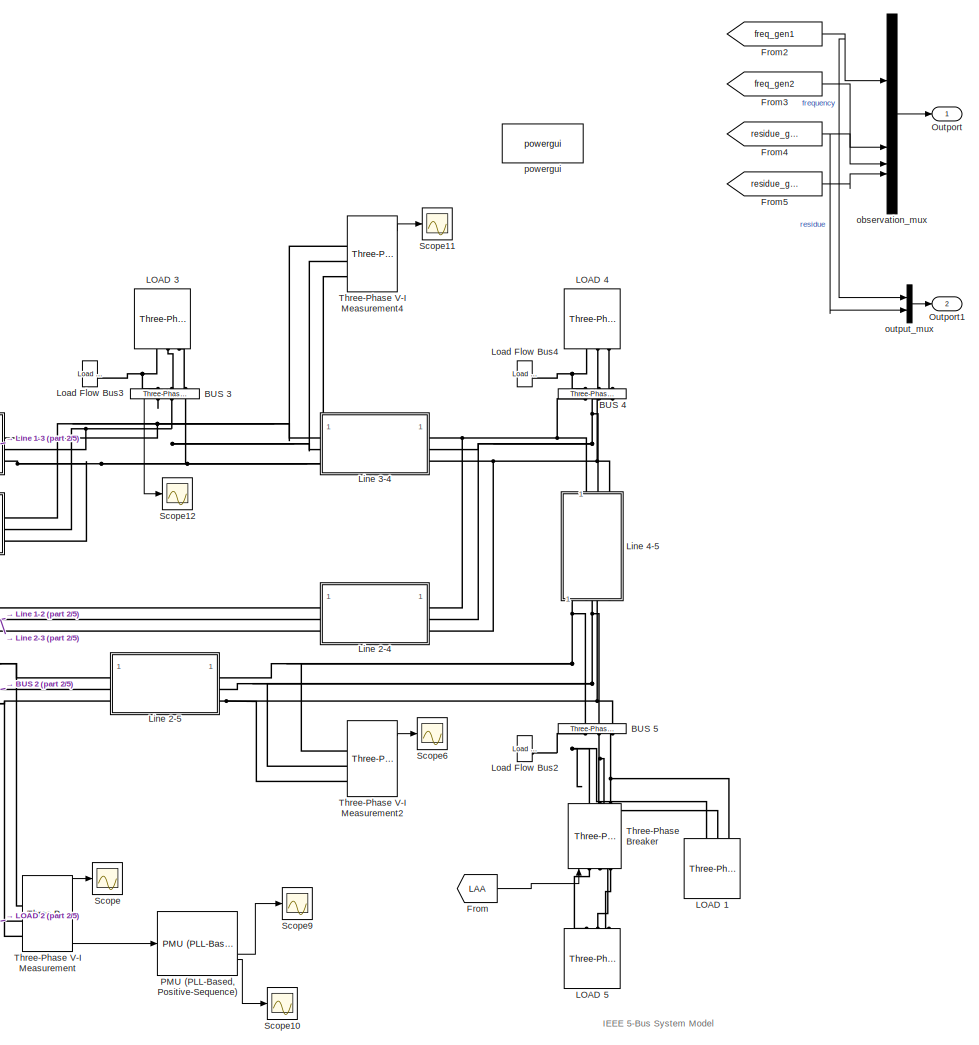
[diagram: root canvas - part 1/5, right side, full height]
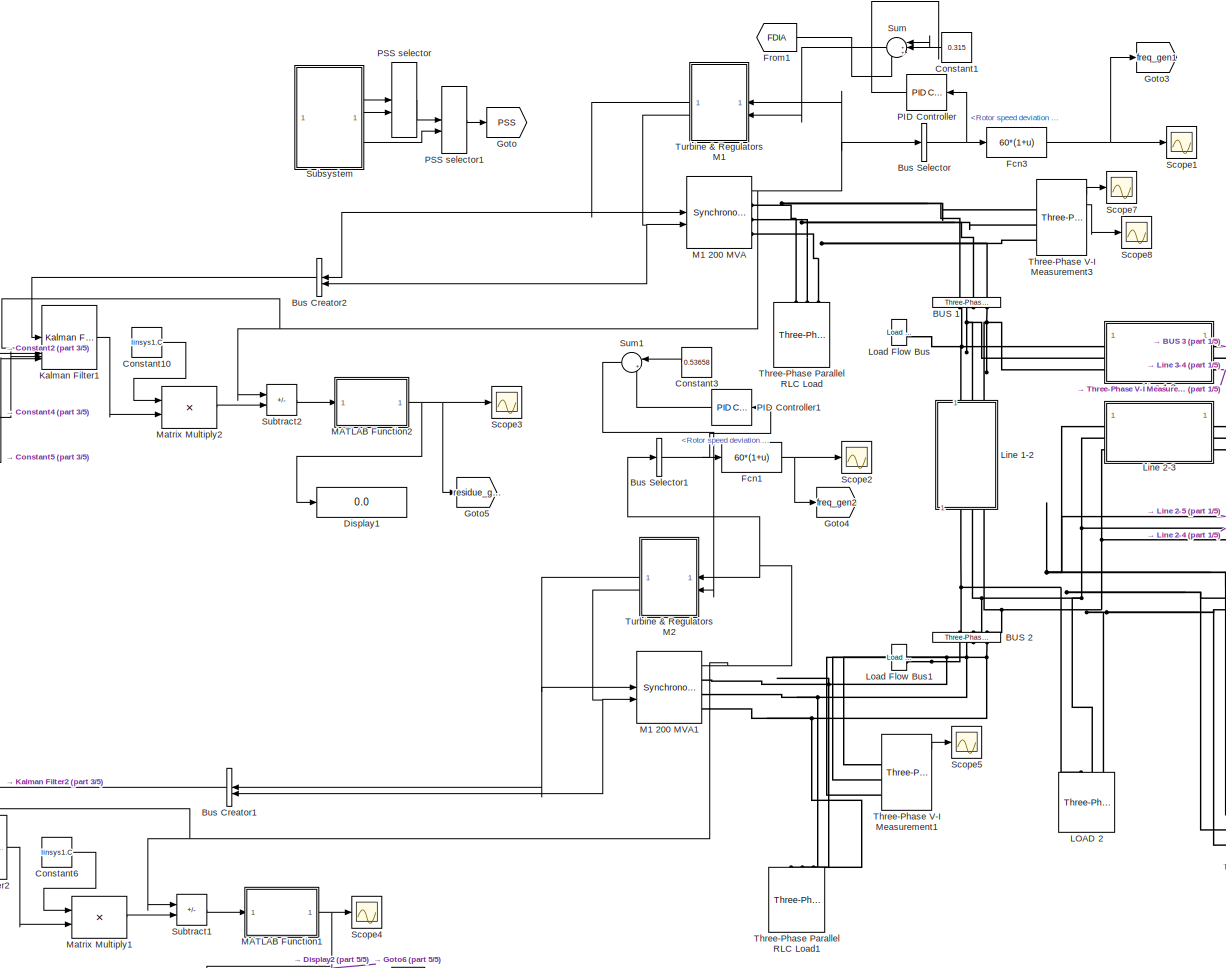
[diagram: root canvas - part 2/5, center side, full height]
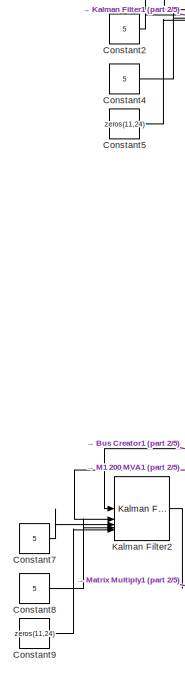
[diagram: root canvas - part 3/5, bottom left region]
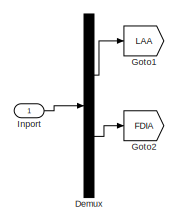
[diagram: root canvas - part 4/5, middle left region]
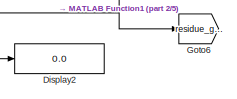
[diagram: root canvas - part 5/5, bottom left region]
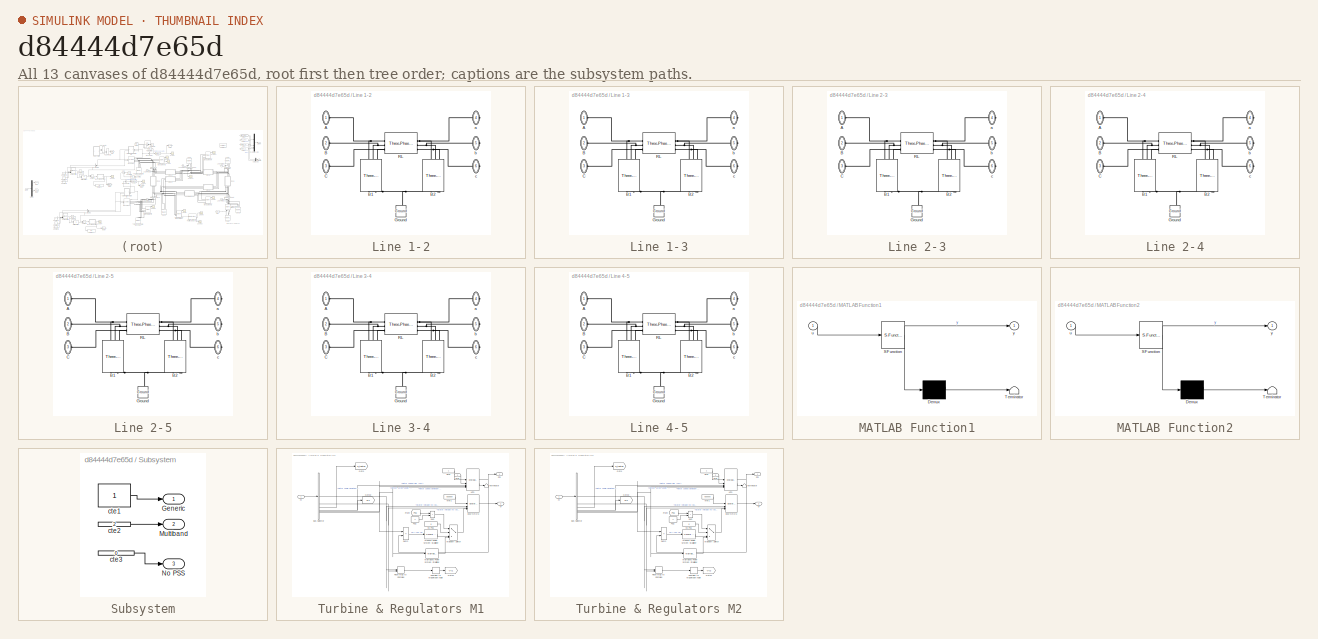
[diagram: thumbnail index - all 13 canvases of the model, root first then tree order]
MODEL mdl_d84444d7e65d
KIND model
CONFIG AbsTol = auto
CONFIG EnableMultiTasking = off
CONFIG FixedStep = auto
CONFIG MaxStep = auto
CONFIG MinStep = auto
CONFIG RelTol = 1e-3
CONFIG SampleTimeConstraint = Unconstrained
CONFIG SolverName = VariableStepAuto
CONFIG StartTime = 0.0
CONFIG StopTime = 2
BLOCK [Reference] BUS 1  REF=spsThreePhaseVIMeasurementLib/Three-Phase
V-I Measurement
  NameLocation = left
  SourceBlock = spsThreePhaseVIMeasurementLib/Three-Phase\nV-I Measurement
  SourceType = Three-Phase VI Measurement
BLOCK [Reference] BUS 2  REF=spsThreePhaseVIMeasurementLib/Three-Phase
V-I Measurement
  NameLocation = left
  SourceBlock = spsThreePhaseVIMeasurementLib/Three-Phase\nV-I Measurement
  SourceType = Three-Phase VI Measurement
BLOCK [Reference] BUS 3  REF=spsThreePhaseVIMeasurementLib/Three-Phase
V-I Measurement
  NameLocation = left
  SourceBlock = spsThreePhaseVIMeasurementLib/Three-Phase\nV-I Measurement
  SourceType = Three-Phase VI Measurement
BLOCK [Reference] BUS 4  REF=spsThreePhaseVIMeasurementLib/Three-Phase
V-I Measurement
  NameLocation = left
  SourceBlock = spsThreePhaseVIMeasurementLib/Three-Phase\nV-I Measurement
  SourceType = Three-Phase VI Measurement
BLOCK [Reference] BUS 5  REF=spsThreePhaseVIMeasurementLib/Three-Phase
V-I Measurement
  NameLocation = left
  SourceBlock = spsThreePhaseVIMeasurementLib/Three-Phase\nV-I Measurement
  SourceType = Three-Phase VI Measurement
BLOCK [BusCreator] Bus Creator1
  DisplayOption = bar
  InheritFromInputs = on
  Inputs = 2
  NameLocation = top
BLOCK [BusCreator] Bus Creator2
  DisplayOption = bar
  InheritFromInputs = on
  Inputs = 2
  NameLocation = top
BLOCK [BusSelector] Bus Selector
  OutputSignals = Mechanical.Rotor speed deviation  dw (pu)
BLOCK [BusSelector] Bus Selector1
  OutputSignals = Mechanical.Rotor speed deviation  dw (pu)
BLOCK [Constant] Constant1
  NameLocation = top
  Value = 0.315
BLOCK [Constant] Constant10
  Value = linsys1.C
BLOCK [Constant] Constant2
  Value = 5
BLOCK [Constant] Constant3
  NameLocation = top
  Value = 0.53658
BLOCK [Constant] Constant4
  Value = 5
BLOCK [Constant] Constant5
  Value = zeros(11,24)
BLOCK [Constant] Constant6
  Value = linsys1.C
BLOCK [Constant] Constant7
  Value = 5
BLOCK [Constant] Constant8
  Value = 5
BLOCK [Constant] Constant9
  Value = zeros(11,24)
BLOCK [Demux] Demux
  Outputs = 2
BLOCK [Display] Display1
  Decimation = 1
BLOCK [Display] Display2
  Decimation = 1
BLOCK [Fcn] Fcn1
  Expr = 60*(1+u)
BLOCK [Fcn] Fcn3
  Expr = 60*(1+u)
BLOCK [From] From
  GotoTag = LAA
BLOCK [From] From1
  GotoTag = FDIA
BLOCK [From] From2
  GotoTag = freq_gen1
BLOCK [From] From3
  GotoTag = freq_gen2
BLOCK [From] From4
  GotoTag = residue_gen1
BLOCK [From] From5
  GotoTag = residue_gen2
BLOCK [Goto] Goto
  GotoTag = PSS
  TagVisibility = global
BLOCK [Goto] Goto1
  GotoTag = LAA
BLOCK [Goto] Goto2
  GotoTag = FDIA
BLOCK [Goto] Goto3
  GotoTag = freq_gen1
BLOCK [Goto] Goto4
  GotoTag = freq_gen2
BLOCK [Goto] Goto5
  GotoTag = residue_gen1
BLOCK [Goto] Goto6
  GotoTag = residue_gen2
BLOCK [Inport] Inport
BLOCK [Reference] Kalman Filter1  REF=ctrlSharedLib/Kalman Filter
  SourceBlock = ctrlSharedLib/Kalman Filter
  SourceType = ctrlKalmanFilter
BLOCK [Reference] Kalman Filter2  REF=ctrlSharedLib/Kalman Filter
  SourceBlock = ctrlSharedLib/Kalman Filter
  SourceType = ctrlKalmanFilter
BLOCK [Reference] LOAD 1  REF=spsThreePhaseSeriesRLCLoadLib/Three-Phase
Series RLC Load
  AttributesFormatString = \n
  NameLocation = right
  SourceBlock = spsThreePhaseSeriesRLCLoadLib/Three-Phase\nSeries RLC Load
  SourceType = Three-Phase Series RLC Load
BLOCK [Reference] LOAD 2  REF=spsThreePhaseSeriesRLCLoadLib/Three-Phase
Series RLC Load
  AttributesFormatString = \n
  NameLocation = right
  SourceBlock = spsThreePhaseSeriesRLCLoadLib/Three-Phase\nSeries RLC Load
  SourceType = Three-Phase Series RLC Load
BLOCK [Reference] LOAD 3  REF=spsThreePhaseSeriesRLCLoadLib/Three-Phase
Series RLC Load
  AttributesFormatString = \n
  NameLocation = right
  SourceBlock = spsThreePhaseSeriesRLCLoadLib/Three-Phase\nSeries RLC Load
  SourceType = Three-Phase Series RLC Load
BLOCK [Reference] LOAD 4  REF=spsThreePhaseSeriesRLCLoadLib/Three-Phase
Series RLC Load
  AttributesFormatString = \n
  NameLocation = right
  SourceBlock = spsThreePhaseSeriesRLCLoadLib/Three-Phase\nSeries RLC Load
  SourceType = Three-Phase Series RLC Load
BLOCK [Reference] LOAD 5  REF=spsThreePhaseSeriesRLCLoadLib/Three-Phase
Series RLC Load
  AttributesFormatString = \n
  NameLocation = right
  SourceBlock = spsThreePhaseSeriesRLCLoadLib/Three-Phase\nSeries RLC Load
  SourceType = Three-Phase Series RLC Load
BLOCK [SubSystem] Line 1-2
  NameLocation = right
BLOCK [PMIOPort] Line 1-2/A
  NameLocation = top
  Side = Left
BLOCK [PMIOPort] Line 1-2/B
  NameLocation = top
  Port = 2
  Side = Left
BLOCK [Reference] Line 1-2/B1  REF=spsThreePhaseSeriesRLCBranchLib/Three-Phase
Series RLC Branch
  AttributesFormatString = \n
  NameLocation = left
  SourceBlock = spsThreePhaseSeriesRLCBranchLib/Three-Phase\nSeries RLC Branch
  SourceType = Three-Phase Series RLC Branch
BLOCK [Reference] Line 1-2/B2  REF=spsThreePhaseSeriesRLCBranchLib/Three-Phase
Series RLC Branch
  AttributesFormatString = \n
  NameLocation = left
  SourceBlock = spsThreePhaseSeriesRLCBranchLib/Three-Phase\nSeries RLC Branch
  SourceType = Three-Phase Series RLC Branch
BLOCK [PMIOPort] Line 1-2/C
  NameLocation = top
  Port = 3
  Side = Left
BLOCK [Reference] Line 1-2/Ground  REF=spsGroundLib/Ground
  NameLocation = right
  SourceBlock = spsGroundLib/Ground
  SourceType = Ground
BLOCK [Reference] Line 1-2/RL  REF=spsThreePhaseSeriesRLCBranchLib/Three-Phase
Series RLC Branch
  AttributesFormatString = \n
  SourceBlock = spsThreePhaseSeriesRLCBranchLib/Three-Phase\nSeries RLC Branch
  SourceType = Three-Phase Series RLC Branch
BLOCK [PMIOPort] Line 1-2/a
  NameLocation = top
  Port = 4
  Side = Right
BLOCK [PMIOPort] Line 1-2/b
  NameLocation = top
  Port = 5
  Side = Right
BLOCK [PMIOPort] Line 1-2/c
  NameLocation = top
  Port = 6
  Side = Right
BLOCK [SubSystem] Line 1-3
BLOCK [PMIOPort] Line 1-3/A
  NameLocation = top
  Side = Left
BLOCK [PMIOPort] Line 1-3/B
  NameLocation = top
  Port = 2
  Side = Left
BLOCK [Reference] Line 1-3/B1  REF=spsThreePhaseSeriesRLCBranchLib/Three-Phase
Series RLC Branch
  AttributesFormatString = \n
  NameLocation = left
  SourceBlock = spsThreePhaseSeriesRLCBranchLib/Three-Phase\nSeries RLC Branch
  SourceType = Three-Phase Series RLC Branch
BLOCK [Reference] Line 1-3/B2  REF=spsThreePhaseSeriesRLCBranchLib/Three-Phase
Series RLC Branch
  AttributesFormatString = \n
  NameLocation = left
  SourceBlock = spsThreePhaseSeriesRLCBranchLib/Three-Phase\nSeries RLC Branch
  SourceType = Three-Phase Series RLC Branch
BLOCK [PMIOPort] Line 1-3/C
  NameLocation = top
  Port = 3
  Side = Left
BLOCK [Reference] Line 1-3/Ground  REF=spsGroundLib/Ground
  NameLocation = right
  SourceBlock = spsGroundLib/Ground
  SourceType = Ground
BLOCK [Reference] Line 1-3/RL  REF=spsThreePhaseSeriesRLCBranchLib/Three-Phase
Series RLC Branch
  AttributesFormatString = \n
  SourceBlock = spsThreePhaseSeriesRLCBranchLib/Three-Phase\nSeries RLC Branch
  SourceType = Three-Phase Series RLC Branch
BLOCK [PMIOPort] Line 1-3/a
  NameLocation = top
  Port = 4
  Side = Right
BLOCK [PMIOPort] Line 1-3/b
  NameLocation = top
  Port = 5
  Side = Right
BLOCK [PMIOPort] Line 1-3/c
  NameLocation = top
  Port = 6
  Side = Right
BLOCK [SubSystem] Line 2-3
BLOCK [PMIOPort] Line 2-3/A
  NameLocation = top
  Side = Left
BLOCK [PMIOPort] Line 2-3/B
  NameLocation = top
  Port = 2
  Side = Left
BLOCK [Reference] Line 2-3/B1  REF=spsThreePhaseSeriesRLCBranchLib/Three-Phase
Series RLC Branch
  AttributesFormatString = \n
  NameLocation = left
  SourceBlock = spsThreePhaseSeriesRLCBranchLib/Three-Phase\nSeries RLC Branch
  SourceType = Three-Phase Series RLC Branch
BLOCK [Reference] Line 2-3/B2  REF=spsThreePhaseSeriesRLCBranchLib/Three-Phase
Series RLC Branch
  AttributesFormatString = \n
  NameLocation = left
  SourceBlock = spsThreePhaseSeriesRLCBranchLib/Three-Phase\nSeries RLC Branch
  SourceType = Three-Phase Series RLC Branch
BLOCK [PMIOPort] Line 2-3/C
  NameLocation = top
  Port = 3
  Side = Left
BLOCK [Reference] Line 2-3/Ground  REF=spsGroundLib/Ground
  NameLocation = right
  SourceBlock = spsGroundLib/Ground
  SourceType = Ground
BLOCK [Reference] Line 2-3/RL  REF=spsThreePhaseSeriesRLCBranchLib/Three-Phase
Series RLC Branch
  AttributesFormatString = \n
  SourceBlock = spsThreePhaseSeriesRLCBranchLib/Three-Phase\nSeries RLC Branch
  SourceType = Three-Phase Series RLC Branch
BLOCK [PMIOPort] Line 2-3/a
  NameLocation = top
  Port = 4
  Side = Right
BLOCK [PMIOPort] Line 2-3/b
  NameLocation = top
  Port = 5
  Side = Right
BLOCK [PMIOPort] Line 2-3/c
  NameLocation = top
  Port = 6
  Side = Right
BLOCK [SubSystem] Line 2-4
BLOCK [PMIOPort] Line 2-4/A
  NameLocation = top
  Side = Left
BLOCK [PMIOPort] Line 2-4/B
  NameLocation = top
  Port = 2
  Side = Left
BLOCK [Reference] Line 2-4/B1  REF=spsThreePhaseSeriesRLCBranchLib/Three-Phase
Series RLC Branch
  AttributesFormatString = \n
  NameLocation = left
  SourceBlock = spsThreePhaseSeriesRLCBranchLib/Three-Phase\nSeries RLC Branch
  SourceType = Three-Phase Series RLC Branch
BLOCK [Reference] Line 2-4/B2  REF=spsThreePhaseSeriesRLCBranchLib/Three-Phase
Series RLC Branch
  AttributesFormatString = \n
  NameLocation = left
  SourceBlock = spsThreePhaseSeriesRLCBranchLib/Three-Phase\nSeries RLC Branch
  SourceType = Three-Phase Series RLC Branch
BLOCK [PMIOPort] Line 2-4/C
  NameLocation = top
  Port = 3
  Side = Left
BLOCK [Reference] Line 2-4/Ground  REF=spsGroundLib/Ground
  NameLocation = right
  SourceBlock = spsGroundLib/Ground
  SourceType = Ground
BLOCK [Reference] Line 2-4/RL  REF=spsThreePhaseSeriesRLCBranchLib/Three-Phase
Series RLC Branch
  AttributesFormatString = \n
  SourceBlock = spsThreePhaseSeriesRLCBranchLib/Three-Phase\nSeries RLC Branch
  SourceType = Three-Phase Series RLC Branch
BLOCK [PMIOPort] Line 2-4/a
  NameLocation = top
  Port = 4
  Side = Right
BLOCK [PMIOPort] Line 2-4/b
  NameLocation = top
  Port = 5
  Side = Right
BLOCK [PMIOPort] Line 2-4/c
  NameLocation = top
  Port = 6
  Side = Right
BLOCK [SubSystem] Line 2-5
BLOCK [PMIOPort] Line 2-5/A
  NameLocation = top
  Side = Left
BLOCK [PMIOPort] Line 2-5/B
  NameLocation = top
  Port = 2
  Side = Left
BLOCK [Reference] Line 2-5/B1  REF=spsThreePhaseSeriesRLCBranchLib/Three-Phase
Series RLC Branch
  AttributesFormatString = \n
  NameLocation = left
  SourceBlock = spsThreePhaseSeriesRLCBranchLib/Three-Phase\nSeries RLC Branch
  SourceType = Three-Phase Series RLC Branch
BLOCK [Reference] Line 2-5/B2  REF=spsThreePhaseSeriesRLCBranchLib/Three-Phase
Series RLC Branch
  AttributesFormatString = \n
  NameLocation = left
  SourceBlock = spsThreePhaseSeriesRLCBranchLib/Three-Phase\nSeries RLC Branch
  SourceType = Three-Phase Series RLC Branch
BLOCK [PMIOPort] Line 2-5/C
  NameLocation = top
  Port = 3
  Side = Left
BLOCK [Reference] Line 2-5/Ground  REF=spsGroundLib/Ground
  NameLocation = right
  SourceBlock = spsGroundLib/Ground
  SourceType = Ground
BLOCK [Reference] Line 2-5/RL  REF=spsThreePhaseSeriesRLCBranchLib/Three-Phase
Series RLC Branch
  AttributesFormatString = \n
  SourceBlock = spsThreePhaseSeriesRLCBranchLib/Three-Phase\nSeries RLC Branch
  SourceType = Three-Phase Series RLC Branch
BLOCK [PMIOPort] Line 2-5/a
  NameLocation = top
  Port = 4
  Side = Right
BLOCK [PMIOPort] Line 2-5/b
  NameLocation = top
  Port = 5
  Side = Right
BLOCK [PMIOPort] Line 2-5/c
  NameLocation = top
  Port = 6
  Side = Right
BLOCK [SubSystem] Line 3-4
BLOCK [PMIOPort] Line 3-4/A
  NameLocation = top
  Side = Left
BLOCK [PMIOPort] Line 3-4/B
  NameLocation = top
  Port = 2
  Side = Left
BLOCK [Reference] Line 3-4/B1  REF=spsThreePhaseSeriesRLCBranchLib/Three-Phase
Series RLC Branch
  AttributesFormatString = \n
  NameLocation = left
  SourceBlock = spsThreePhaseSeriesRLCBranchLib/Three-Phase\nSeries RLC Branch
  SourceType = Three-Phase Series RLC Branch
BLOCK [Reference] Line 3-4/B2  REF=spsThreePhaseSeriesRLCBranchLib/Three-Phase
Series RLC Branch
  AttributesFormatString = \n
  NameLocation = left
  SourceBlock = spsThreePhaseSeriesRLCBranchLib/Three-Phase\nSeries RLC Branch
  SourceType = Three-Phase Series RLC Branch
BLOCK [PMIOPort] Line 3-4/C
  NameLocation = top
  Port = 3
  Side = Left
BLOCK [Reference] Line 3-4/Ground  REF=spsGroundLib/Ground
  NameLocation = right
  SourceBlock = spsGroundLib/Ground
  SourceType = Ground
BLOCK [Reference] Line 3-4/RL  REF=spsThreePhaseSeriesRLCBranchLib/Three-Phase
Series RLC Branch
  AttributesFormatString = \n
  SourceBlock = spsThreePhaseSeriesRLCBranchLib/Three-Phase\nSeries RLC Branch
  SourceType = Three-Phase Series RLC Branch
BLOCK [PMIOPort] Line 3-4/a
  NameLocation = top
  Port = 4
  Side = Right
BLOCK [PMIOPort] Line 3-4/b
  NameLocation = top
  Port = 5
  Side = Right
BLOCK [PMIOPort] Line 3-4/c
  NameLocation = top
  Port = 6
  Side = Right
BLOCK [SubSystem] Line 4-5
  NameLocation = right
BLOCK [PMIOPort] Line 4-5/A
  NameLocation = top
  Side = Left
BLOCK [PMIOPort] Line 4-5/B
  NameLocation = top
  Port = 2
  Side = Left
BLOCK [Reference] Line 4-5/B1  REF=spsThreePhaseSeriesRLCBranchLib/Three-Phase
Series RLC Branch
  AttributesFormatString = \n
  NameLocation = left
  SourceBlock = spsThreePhaseSeriesRLCBranchLib/Three-Phase\nSeries RLC Branch
  SourceType = Three-Phase Series RLC Branch
BLOCK [Reference] Line 4-5/B2  REF=spsThreePhaseSeriesRLCBranchLib/Three-Phase
Series RLC Branch
  AttributesFormatString = \n
  NameLocation = left
  SourceBlock = spsThreePhaseSeriesRLCBranchLib/Three-Phase\nSeries RLC Branch
  SourceType = Three-Phase Series RLC Branch
BLOCK [PMIOPort] Line 4-5/C
  NameLocation = top
  Port = 3
  Side = Left
BLOCK [Reference] Line 4-5/Ground  REF=spsGroundLib/Ground
  NameLocation = right
  SourceBlock = spsGroundLib/Ground
  SourceType = Ground
BLOCK [Reference] Line 4-5/RL  REF=spsThreePhaseSeriesRLCBranchLib/Three-Phase
Series RLC Branch
  AttributesFormatString = \n
  SourceBlock = spsThreePhaseSeriesRLCBranchLib/Three-Phase\nSeries RLC Branch
  SourceType = Three-Phase Series RLC Branch
BLOCK [PMIOPort] Line 4-5/a
  NameLocation = top
  Port = 4
  Side = Right
BLOCK [PMIOPort] Line 4-5/b
  NameLocation = top
  Port = 5
  Side = Right
BLOCK [PMIOPort] Line 4-5/c
  NameLocation = top
  Port = 6
  Side = Right
BLOCK [Reference] Load Flow Bus  REF=spsLoadFlowBusLib/Load Flow Bus
  AttributesFormatString = %<ID>\n%<Vbase>V\n%<VLF>pu\n%<angleLF>deg.
  SourceBlock = spsLoadFlowBusLib/Load Flow Bus
  SourceType = Load Flow Bus
BLOCK [Reference] Load Flow Bus1  REF=spsLoadFlowBusLib/Load Flow Bus
  AttributesFormatString = %<ID>\n%<Vbase>V\n%<VLF>pu\n%<angleLF>deg.
  SourceBlock = spsLoadFlowBusLib/Load Flow Bus
  SourceType = Load Flow Bus
BLOCK [Reference] Load Flow Bus2  REF=spsLoadFlowBusLib/Load Flow Bus
  AttributesFormatString = %<ID>\n%<Vbase>V\n%<VLF>pu\n%<angleLF>deg.
  SourceBlock = spsLoadFlowBusLib/Load Flow Bus
  SourceType = Load Flow Bus
BLOCK [Reference] Load Flow Bus3  REF=spsLoadFlowBusLib/Load Flow Bus
  AttributesFormatString = %<ID>\n%<Vbase>V\n%<VLF>pu\n%<angleLF>deg.
  NameLocation = top
  SourceBlock = spsLoadFlowBusLib/Load Flow Bus
  SourceType = Load Flow Bus
BLOCK [Reference] Load Flow Bus4  REF=spsLoadFlowBusLib/Load Flow Bus
  AttributesFormatString = %<ID>\n%<Vbase>V\n%<VLF>pu\n%<angleLF>deg.
  NameLocation = top
  SourceBlock = spsLoadFlowBusLib/Load Flow Bus
  SourceType = Load Flow Bus
BLOCK [Reference] M1 200 MVA  REF=spsSynchronousMachinepuStandardLib/Synchronous Machine
pu Standard
  AttributesFormatString = \n\n
  SourceBlock = spsSynchronousMachinepuStandardLib/Synchronous Machine\npu Standard
  SourceType = Synchronous Machine
BLOCK [Reference] M1 200 MVA1  REF=spsSynchronousMachinepuStandardLib/Synchronous Machine
pu Standard
  AttributesFormatString = \n\n
  SourceBlock = spsSynchronousMachinepuStandardLib/Synchronous Machine\npu Standard
  SourceType = Synchronous Machine
BLOCK [SubSystem] MATLAB Function1
  ErrorFcn = Stateflow.Translate.translate
  PermitHierarchicalResolution = ExplicitOnly
  SFBlockType = MATLAB Function
  TreatAsAtomicUnit = on
BLOCK [Demux] MATLAB Function1/ Demux 
  Outputs = 1
BLOCK [S-Function] MATLAB Function1/ SFunction 
  EnableBusSupport = off
  FunctionName = sf_sfun
  PortCounts = [1 2]
  SFcnIsStateOwnerBlock = off
  SFunctionDeploymentMode = off
  Tag = Stateflow S-Function 1
BLOCK [Terminator] MATLAB Function1/ Terminator 
BLOCK [Inport] MATLAB Function1/u
BLOCK [Outport] MATLAB Function1/y
  VectorParamsAs1DForOutWhenUnconnected = off
BLOCK [SubSystem] MATLAB Function2
  ErrorFcn = Stateflow.Translate.translate
  PermitHierarchicalResolution = ExplicitOnly
  SFBlockType = MATLAB Function
  TreatAsAtomicUnit = on
BLOCK [Demux] MATLAB Function2/ Demux 
  Outputs = 1
BLOCK [S-Function] MATLAB Function2/ SFunction 
  EnableBusSupport = off
  FunctionName = sf_sfun
  PortCounts = [1 2]
  SFcnIsStateOwnerBlock = off
  SFunctionDeploymentMode = off
  Tag = Stateflow S-Function 2
BLOCK [Terminator] MATLAB Function2/ Terminator 
BLOCK [Inport] MATLAB Function2/u
BLOCK [Outport] MATLAB Function2/y
  VectorParamsAs1DForOutWhenUnconnected = off
BLOCK [Product] Matrix Multiply1
  Multiplication = Matrix(*)
BLOCK [Product] Matrix Multiply2
  Multiplication = Matrix(*)
BLOCK [Outport] Outport
BLOCK [Outport] Outport1
  Port = 2
BLOCK [Reference] PID Controller  REF=slpidlib/PID Controller
  NameLocation = top
  SourceBlock = slpidlib/PID Controller
  SourceType = PID 1dof
BLOCK [Reference] PID Controller1  REF=slpidlib/PID Controller
  NameLocation = top
  SourceBlock = slpidlib/PID Controller
  SourceType = PID 1dof
BLOCK [Reference] PMU (PLL-Based, Positive-Sequence)  REF=spsPMUPLLBasedPositiveSequenceLib/PMU
(PLL-Based,
Positive-Sequence)
  Commented = on
  SourceBlock = spsPMUPLLBasedPositiveSequenceLib/PMU\n(PLL-Based,\nPositive-Sequence)
  SourceType = PMU (PLL-Based, Positive-Sequence)
BLOCK [ManualSwitch] PSS selector
  CurrentSetting = 0
BLOCK [ManualSwitch] PSS selector1
BLOCK [Scope] Scope
  Commented = on
  Floating = off
  NumInputPorts = 1
  ScopeSpecificationString = Simulink.scopes.TimeScopeBlockCfg('CurrentConfiguration', extmgr.ConfigurationSet(extmgr.Configuration('Core','General UI',true),extmgr.Configuration('Core','Source UI',true),extmgr.Configuration('Sources','WiredSimulink',true,'DataLoggingVariableName','ScopeData1'),extmgr.Configuration('Visuals','Time Domain',true,'SerializedDisplays',{struct('MinYLimReal','-12288.79311','MaxYLimReal','12294.1675...<+1557ch>
BLOCK [Scope] Scope1
  Floating = off
  NumInputPorts = 1
  ScopeSpecificationString = Simulink.scopes.TimeScopeBlockCfg('CurrentConfiguration', extmgr.ConfigurationSet(extmgr.Configuration('Core','General UI',true,'FigureColor',[1 1 1]),extmgr.Configuration('Core','Source UI',true),extmgr.Configuration('Sources','WiredSimulink',true,'DataLoggingVariableName','ScopeData2'),extmgr.Configuration('Visuals','Time Domain',true,'SerializedDisplays',{struct('MinYLimReal','59.9834','MaxYLim...<+1556ch>
BLOCK [Scope] Scope10
  Commented = on
  Floating = off
  NumInputPorts = 1
  ScopeSpecificationString = Simulink.scopes.TimeScopeBlockCfg('CurrentConfiguration', extmgr.ConfigurationSet(extmgr.Configuration('Core','General UI',true),extmgr.Configuration('Core','Source UI',true),extmgr.Configuration('Sources','WiredSimulink',true,'DataLoggingVariableName','ScopeData3'),extmgr.Configuration('Visuals','Time Domain',true,'SerializedDisplays',{struct('MinYLimReal','59.85941','MaxYLimReal','61.16503','YLa...<+1455ch>
BLOCK [Scope] Scope11
  Commented = on
  Floating = off
  NumInputPorts = 1
  ScopeSpecificationString = Simulink.scopes.TimeScopeBlockCfg('CurrentConfiguration', extmgr.ConfigurationSet(extmgr.Configuration('Core','General UI',true),extmgr.Configuration('Core','Source UI',true),extmgr.Configuration('Sources','WiredSimulink',true,'DataLoggingVariableName','ScopeData4'),extmgr.Configuration('Visuals','Time Domain',true,'SerializedDisplays',{struct('MinYLimReal','-12123.73163','MaxYLimReal','12129.4288...<+1506ch>
BLOCK [Scope] Scope12
  Floating = off
  NumInputPorts = 1
  ScopeSpecificationString = Simulink.scopes.TimeScopeBlockCfg('CurrentConfiguration', extmgr.ConfigurationSet(extmgr.Configuration('Core','General UI',true),extmgr.Configuration('Core','Source UI',true),extmgr.Configuration('Sources','WiredSimulink',true,'DataLoggingVariableName','ScopeData5'),extmgr.Configuration('Visuals','Time Domain',true,'SerializedDisplays',{struct('MinYLimReal','-21003.29607','MaxYLimReal','21001.8577...<+1470ch>
BLOCK [Scope] Scope2
  Floating = off
  NumInputPorts = 1
  ScopeSpecificationString = Simulink.scopes.TimeScopeBlockCfg('CurrentConfiguration', extmgr.ConfigurationSet(extmgr.Configuration('Core','General UI',true),extmgr.Configuration('Core','Source UI',true),extmgr.Configuration('Sources','WiredSimulink',true,'DataLoggingVariableName','ScopeData6'),extmgr.Configuration('Visuals','Time Domain',true,'SerializedDisplays',{struct('MinYLimReal','59.83532','MaxYLimReal','61.48208','YLa...<+1423ch>
BLOCK [Scope] Scope3
  Floating = off
  NumInputPorts = 1
  ScopeSpecificationString = Simulink.scopes.TimeScopeBlockCfg('CurrentConfiguration', extmgr.ConfigurationSet(extmgr.Configuration('Core','General UI',true,'FigureColor',[1 1 1]),extmgr.Configuration('Core','Source UI',true),extmgr.Configuration('Sources','WiredSimulink',true,'DataLoggingVariableName','ScopeData7'),extmgr.Configuration('Visuals','Time Domain',true,'SerializedDisplays',{struct('MinYLimReal','-42.14014','MaxYL...<+1578ch>
BLOCK [Scope] Scope4
  Floating = off
  NumInputPorts = 1
  ScopeSpecificationString = Simulink.scopes.TimeScopeBlockCfg('CurrentConfiguration', extmgr.ConfigurationSet(extmgr.Configuration('Core','General UI',true),extmgr.Configuration('Core','Source UI',true),extmgr.Configuration('Sources','WiredSimulink',true,'DataLoggingVariableName','ScopeData8'),extmgr.Configuration('Visuals','Time Domain',true,'SerializedDisplays',{struct('MinYLimReal','53.89523','MaxYLimReal','68.71177','YLa...<+1454ch>
BLOCK [Scope] Scope5
  Commented = on
  Floating = off
  NumInputPorts = 1
  ScopeSpecificationString = Simulink.scopes.TimeScopeBlockCfg('CurrentConfiguration', extmgr.ConfigurationSet(extmgr.Configuration('Core','General UI',true),extmgr.Configuration('Core','Source UI',true),extmgr.Configuration('Sources','WiredSimulink',true,'DataLoggingVariableName','ScopeData9'),extmgr.Configuration('Visuals','Time Domain',true,'SerializedDisplays',{struct('MinYLimReal','-12331.89586','MaxYLimReal','12320.3505...<+1560ch>
BLOCK [Scope] Scope6
  Commented = on
  Floating = off
  NumInputPorts = 1
  ScopeSpecificationString = Simulink.scopes.TimeScopeBlockCfg('CurrentConfiguration', extmgr.ConfigurationSet(extmgr.Configuration('Core','General UI',true),extmgr.Configuration('Core','Source UI',true),extmgr.Configuration('Sources','WiredSimulink',true,'DataLoggingVariableName','ScopeData10'),extmgr.Configuration('Visuals','Time Domain',true,'SerializedDisplays',{struct('MinYLimReal','-12263.47924','MaxYLimReal','12269.474...<+1561ch>
BLOCK [Scope] Scope7
  Commented = on
  Floating = off
  NumInputPorts = 1
  ScopeSpecificationString = Simulink.scopes.TimeScopeBlockCfg('CurrentConfiguration', extmgr.ConfigurationSet(extmgr.Configuration('Core','General UI',true),extmgr.Configuration('Core','Source UI',true),extmgr.Configuration('Sources','WiredSimulink',true,'DataLoggingVariableName','ScopeData11'),extmgr.Configuration('Visuals','Time Domain',true,'SerializedDisplays',{struct('MinYLimReal','-12928.8064','MaxYLimReal','12918.4152...<+1557ch>
BLOCK [Scope] Scope8
  Commented = on
  Floating = off
  NumInputPorts = 1
  ScopeSpecificationString = Simulink.scopes.TimeScopeBlockCfg('CurrentConfiguration', extmgr.ConfigurationSet(extmgr.Configuration('Core','General UI',true),extmgr.Configuration('Core','Source UI',true),extmgr.Configuration('Sources','WiredSimulink',true,'DataLoggingVariableName','ScopeData12'),extmgr.Configuration('Visuals','Time Domain',true,'SerializedDisplays',{struct('MinYLimReal','-0.00000000000008','MaxYLimReal','0.00...<+1603ch>
BLOCK [Scope] Scope9
  Commented = on
  Floating = off
  NumInputPorts = 1
  ScopeSpecificationString = Simulink.scopes.TimeScopeBlockCfg('CurrentConfiguration', extmgr.ConfigurationSet(extmgr.Configuration('Core','General UI',true),extmgr.Configuration('Core','Source UI',true),extmgr.Configuration('Sources','WiredSimulink',true),extmgr.Configuration('Visuals','Time Domain',true,'SerializedDisplays',{struct('MinYLimReal','-224.98085','MaxYLimReal','224.98349','YLabelReal','','MinYLimMag',' 0.00000',...<+1424ch>
BLOCK [SubSystem] Subsystem
BLOCK [Outport] Subsystem/Generic
  VectorParamsAs1DForOutWhenUnconnected = off
BLOCK [Outport] Subsystem/Multiband
  Port = 2
  VectorParamsAs1DForOutWhenUnconnected = off
BLOCK [Outport] Subsystem/No PSS
  Port = 3
  VectorParamsAs1DForOutWhenUnconnected = off
BLOCK [Constant] Subsystem/cte1
BLOCK [Constant] Subsystem/cte2
  Value = 2
BLOCK [Constant] Subsystem/cte3
  Value = 0
BLOCK [Sum] Subtract1
  IconShape = rectangular
  Inputs = +-
BLOCK [Sum] Subtract2
  IconShape = rectangular
  Inputs = +-
BLOCK [Sum] Sum
  Inputs = |+++
  NameLocation = top
BLOCK [Sum] Sum1
  Inputs = |++
  NameLocation = top
BLOCK [Reference] Three-Phase Breaker  REF=spsThreePhaseBreakerLib/Three-Phase Breaker
  NameLocation = right
  SourceBlock = spsThreePhaseBreakerLib/Three-Phase Breaker
  SourceType = Three-Phase Breaker
BLOCK [Reference] Three-Phase Parallel RLC Load  REF=spsThreePhaseParallelRLCLoadLib/Three-Phase
Parallel RLC Load
  AttributesFormatString = \n
  NameLocation = right
  SourceBlock = spsThreePhaseParallelRLCLoadLib/Three-Phase\nParallel RLC Load
  SourceType = Three-Phase Parallel RLC Load
BLOCK [Reference] Three-Phase Parallel RLC Load1  REF=spsThreePhaseParallelRLCLoadLib/Three-Phase
Parallel RLC Load
  AttributesFormatString = \n
  NameLocation = right
  SourceBlock = spsThreePhaseParallelRLCLoadLib/Three-Phase\nParallel RLC Load
  SourceType = Three-Phase Parallel RLC Load
BLOCK [Reference] Three-Phase V-I Measurement  REF=spsThreePhaseVIMeasurementLib/Three-Phase
V-I Measurement
  Commented = on
  SourceBlock = spsThreePhaseVIMeasurementLib/Three-Phase\nV-I Measurement
  SourceType = Three-Phase VI Measurement
BLOCK [Reference] Three-Phase V-I Measurement1  REF=spsThreePhaseVIMeasurementLib/Three-Phase
V-I Measurement
  Commented = on
  SourceBlock = spsThreePhaseVIMeasurementLib/Three-Phase\nV-I Measurement
  SourceType = Three-Phase VI Measurement
BLOCK [Reference] Three-Phase V-I Measurement2  REF=spsThreePhaseVIMeasurementLib/Three-Phase
V-I Measurement
  Commented = on
  SourceBlock = spsThreePhaseVIMeasurementLib/Three-Phase\nV-I Measurement
  SourceType = Three-Phase VI Measurement
BLOCK [Reference] Three-Phase V-I Measurement3  REF=spsThreePhaseVIMeasurementLib/Three-Phase
V-I Measurement
  Commented = on
  SourceBlock = spsThreePhaseVIMeasurementLib/Three-Phase\nV-I Measurement
  SourceType = Three-Phase VI Measurement
BLOCK [Reference] Three-Phase V-I Measurement4  REF=spsThreePhaseVIMeasurementLib/Three-Phase
V-I Measurement
  Commented = on
  SourceBlock = spsThreePhaseVIMeasurementLib/Three-Phase\nV-I Measurement
  SourceType = Three-Phase VI Measurement
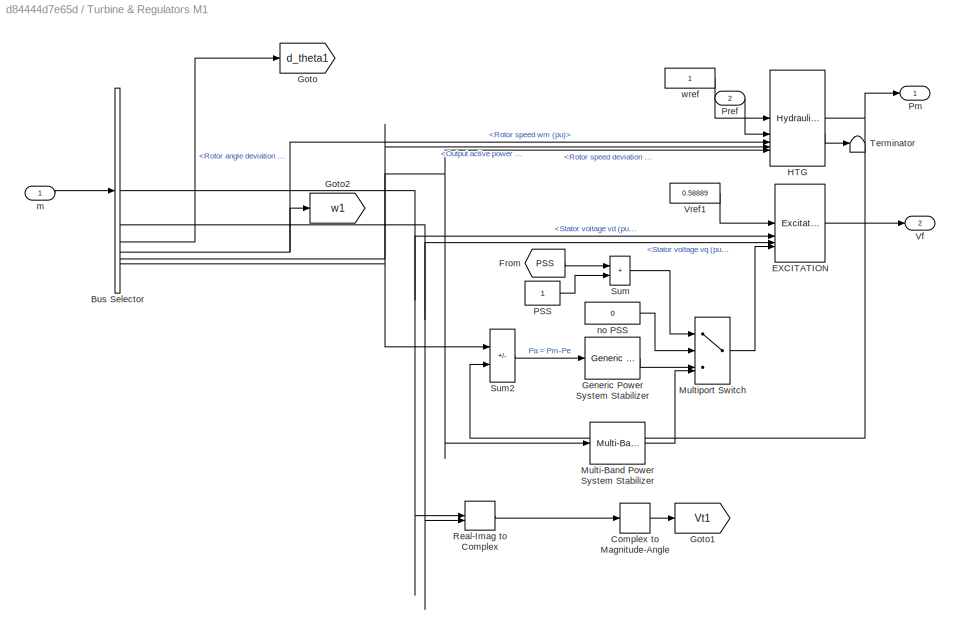
BLOCK [SubSystem] Turbine & Regulators M1
BLOCK [BusSelector] Turbine & Regulators M1/Bus Selector
  OutputSignals = dq0 components.Stator voltage  vd (pu),dq0 components.Stator voltage  vq (pu),Mechanical.Rotor angle deviation  d_theta (rad),Mechanical.Rotor speed  wm  (pu),Mechanical.Rotor speed deviation  dw (pu),Output active power   Peo (pu)
BLOCK [ComplexToMagnitudeAngle] Turbine & Regulators M1/Complex to Magnitude-Angle
  Output = Magnitude
BLOCK [Reference] Turbine & Regulators M1/EXCITATION  REF=spsExcitationSystemLib/Excitation System
  SourceBlock = spsExcitationSystemLib/Excitation System
  SourceType = Excitation System
BLOCK [From] Turbine & Regulators M1/From
  CloseFcn = tagdialog Close
  GotoTag = PSS
  TagVisibility = global
BLOCK [Reference] Turbine & Regulators M1/Generic Power System Stabilizer  REF=spsGenericPowerSystemStabilizerLib/Generic
Power System Stabilizer
  SourceBlock = spsGenericPowerSystemStabilizerLib/Generic\nPower System Stabilizer
  SourceType = Generic Power System Stabilizer
BLOCK [Goto] Turbine & Regulators M1/Goto
  GotoTag = d_theta1
  TagVisibility = global
BLOCK [Goto] Turbine & Regulators M1/Goto1
  GotoTag = Vt1
  TagVisibility = global
BLOCK [Goto] Turbine & Regulators M1/Goto2
  GotoTag = w1
  TagVisibility = global
BLOCK [Reference] Turbine & Regulators M1/HTG  REF=spsHydraulicTurbineandGovernorLib/Hydraulic Turbine
and Governor
  SourceBlock = spsHydraulicTurbineandGovernorLib/Hydraulic Turbine\nand Governor
  SourceType = Hydraulic Turbine and Governor
BLOCK [Reference] Turbine & Regulators M1/Multi-Band Power System Stabilizer  REF=spsMultiBandPowerSystemStabilizerLib/Multi-Band
Power System Stabilizer
  SourceBlock = spsMultiBandPowerSystemStabilizerLib/Multi-Band\nPower System Stabilizer
  SourceType = Multi-Band Power System Stabilizer
BLOCK [MultiPortSwitch] Turbine & Regulators M1/Multiport Switch
  InputSameDT = off
BLOCK [Constant] Turbine & Regulators M1/PSS
BLOCK [Outport] Turbine & Regulators M1/Pm
  InitialOutput = 0
  VectorParamsAs1DForOutWhenUnconnected = off
BLOCK [Inport] Turbine & Regulators M1/Pref
  Port = 2
BLOCK [RealImagToComplex] Turbine & Regulators M1/Real-Imag to Complex
BLOCK [Sum] Turbine & Regulators M1/Sum
  IconShape = rectangular
  SaturateOnIntegerOverflow = on
BLOCK [Sum] Turbine & Regulators M1/Sum2
  IconShape = rectangular
  InputSameDT = on
  Inputs = -+
  OutDataTypeStr = Inherit: Same as first input
  SaturateOnIntegerOverflow = on
BLOCK [Terminator] Turbine & Regulators M1/Terminator
BLOCK [Outport] Turbine & Regulators M1/Vf
  InitialOutput = 0
  Port = 2
  VectorParamsAs1DForOutWhenUnconnected = off
BLOCK [Constant] Turbine & Regulators M1/Vref1
  Value = 0.58889
BLOCK [Inport] Turbine & Regulators M1/m
BLOCK [Constant] Turbine & Regulators M1/no PSS
  Value = 0
BLOCK [Constant] Turbine & Regulators M1/wref
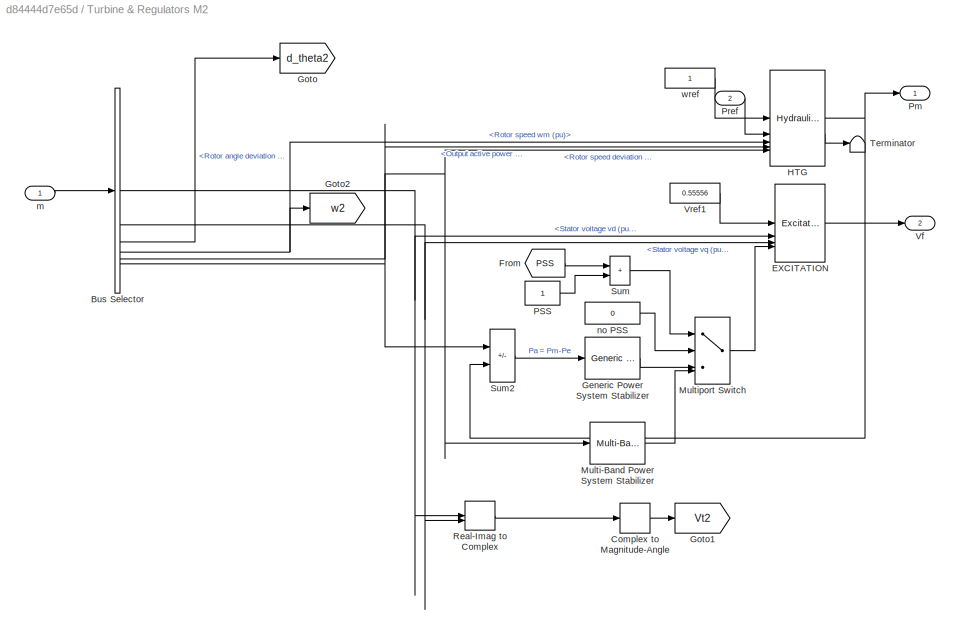
BLOCK [SubSystem] Turbine & Regulators M2
BLOCK [BusSelector] Turbine & Regulators M2/Bus Selector
  OutputSignals = dq0 components.Stator voltage  vd (pu),dq0 components.Stator voltage  vq (pu),Mechanical.Rotor angle deviation  d_theta (rad),Mechanical.Rotor speed  wm  (pu),Mechanical.Rotor speed deviation  dw (pu),Output active power   Peo (pu)
BLOCK [ComplexToMagnitudeAngle] Turbine & Regulators M2/Complex to Magnitude-Angle
  Output = Magnitude
BLOCK [Reference] Turbine & Regulators M2/EXCITATION  REF=spsExcitationSystemLib/Excitation System
  SourceBlock = spsExcitationSystemLib/Excitation System
  SourceType = Excitation System
BLOCK [From] Turbine & Regulators M2/From
  CloseFcn = tagdialog Close
  GotoTag = PSS
  TagVisibility = global
BLOCK [Reference] Turbine & Regulators M2/Generic Power System Stabilizer  REF=spsGenericPowerSystemStabilizerLib/Generic
Power System Stabilizer
  SourceBlock = spsGenericPowerSystemStabilizerLib/Generic\nPower System Stabilizer
  SourceType = Generic Power System Stabilizer
BLOCK [Goto] Turbine & Regulators M2/Goto
  GotoTag = d_theta2
  TagVisibility = global
BLOCK [Goto] Turbine & Regulators M2/Goto1
  GotoTag = Vt2
  TagVisibility = global
BLOCK [Goto] Turbine & Regulators M2/Goto2
  GotoTag = w2
  TagVisibility = global
BLOCK [Reference] Turbine & Regulators M2/HTG  REF=spsHydraulicTurbineandGovernorLib/Hydraulic Turbine
and Governor
  SourceBlock = spsHydraulicTurbineandGovernorLib/Hydraulic Turbine\nand Governor
  SourceType = Hydraulic Turbine and Governor
BLOCK [Reference] Turbine & Regulators M2/Multi-Band Power System Stabilizer  REF=spsMultiBandPowerSystemStabilizerLib/Multi-Band
Power System Stabilizer
  SourceBlock = spsMultiBandPowerSystemStabilizerLib/Multi-Band\nPower System Stabilizer
  SourceType = Multi-Band Power System Stabilizer
BLOCK [MultiPortSwitch] Turbine & Regulators M2/Multiport Switch
  InputSameDT = off
BLOCK [Constant] Turbine & Regulators M2/PSS
BLOCK [Outport] Turbine & Regulators M2/Pm
  InitialOutput = 0
  VectorParamsAs1DForOutWhenUnconnected = off
BLOCK [Inport] Turbine & Regulators M2/Pref
  Port = 2
BLOCK [RealImagToComplex] Turbine & Regulators M2/Real-Imag to Complex
BLOCK [Sum] Turbine & Regulators M2/Sum
  IconShape = rectangular
  SaturateOnIntegerOverflow = on
BLOCK [Sum] Turbine & Regulators M2/Sum2
  IconShape = rectangular
  InputSameDT = on
  Inputs = -+
  OutDataTypeStr = Inherit: Same as first input
  SaturateOnIntegerOverflow = on
BLOCK [Terminator] Turbine & Regulators M2/Terminator
BLOCK [Outport] Turbine & Regulators M2/Vf
  InitialOutput = 0
  Port = 2
  VectorParamsAs1DForOutWhenUnconnected = off
BLOCK [Constant] Turbine & Regulators M2/Vref1
  Value = 0.55556
BLOCK [Inport] Turbine & Regulators M2/m
BLOCK [Constant] Turbine & Regulators M2/no PSS
  Value = 0
BLOCK [Constant] Turbine & Regulators M2/wref
BLOCK [Mux] observation_mux
  DisplayOption = bar
BLOCK [Mux] output_mux
  DisplayOption = bar
  Inputs = 2
  NameLocation = right
BLOCK [Reference] powergui  REF=spspowerguiLib/powergui
  Priority = 1
  SourceBlock = spspowerguiLib/powergui
  SourceType = PSB option menu block
ANNOTATION (root): IEEE 5-Bus System Model
LINE BUS 3:1 -> Scope12:1
LINE Bus Creator1:1 -> Kalman Filter2:1
LINE Bus Creator2:1 -> Kalman Filter1:1
NET Bus Selector1:1 -> Fcn1:1, PID Controller1:1
NET Bus Selector:1 -> Fcn3:1, PID Controller:1
LINE Constant10:1 -> Matrix Multiply2:1
LINE Constant1:1 -> Sum:1
LINE Constant2:1 -> Kalman Filter1:3
LINE Constant3:1 -> Sum1:1
LINE Constant4:1 -> Kalman Filter1:4
LINE Constant5:1 -> Kalman Filter1:5
LINE Constant6:1 -> Matrix Multiply1:1
LINE Constant7:1 -> Kalman Filter2:3
LINE Constant8:1 -> Kalman Filter2:4
LINE Constant9:1 -> Kalman Filter2:5
LINE Demux:1 -> Goto1:1
LINE Demux:2 -> Goto2:1
NET Fcn1:1 -> Goto4:1, Scope2:1
NET Fcn3:1 -> Goto3:1, Scope1:1
LINE From1:1 -> Sum:3
NET From2:1 -> observation_mux:1, output_mux:1
LINE From3:1 -> observation_mux:2
NET From4:1 -> observation_mux:3, output_mux:2
LINE From5:1 -> observation_mux:4
LINE From:1 -> Three-Phase Breaker:1
LINE Inport:1 -> Demux:1
LINE Kalman Filter1:1 -> Matrix Multiply2:2
LINE Kalman Filter2:1 -> Matrix Multiply1:2
NET M1 200 MVA1:1 -> Bus Selector1:1, Kalman Filter2:2, Subtract1:1, Turbine & Regulators M2:1
NET M1 200 MVA:1 -> Bus Selector:1, Kalman Filter1:2, Subtract2:1, Turbine & Regulators M1:1
NET MATLAB Function1:1 -> Display2:1, Goto6:1, Scope4:1
NET MATLAB Function2:1 -> Display1:1, Goto5:1, Scope3:1
LINE Matrix Multiply1:1 -> Subtract1:2
LINE Matrix Multiply2:1 -> Subtract2:2
LINE PID Controller1:1 -> Sum1:2
LINE PID Controller:1 -> Sum:2
LINE PMU (PLL-Based, Positive-Sequence):2 -> Scope9:1
LINE PMU (PLL-Based, Positive-Sequence):3 -> Scope10:1
LINE PSS selector1:1 -> Goto:1
LINE PSS selector:1 -> PSS selector1:1
LINE Subsystem/cte1:1 -> Subsystem/Generic:1
LINE Subsystem/cte2:1 -> Subsystem/Multiband:1
LINE Subsystem/cte3:1 -> Subsystem/No PSS:1
LINE Subsystem:1 -> PSS selector:1
LINE Subsystem:2 -> PSS selector:2
LINE Subsystem:3 -> PSS selector1:2
LINE Subtract1:1 -> MATLAB Function1:1
LINE Subtract2:1 -> MATLAB Function2:1
LINE Sum1:1 -> Turbine & Regulators M2:2
LINE Sum:1 -> Turbine & Regulators M1:2
LINE Three-Phase V-I Measurement1:1 -> Scope5:1
LINE Three-Phase V-I Measurement2:1 -> Scope6:1
LINE Three-Phase V-I Measurement3:1 -> Scope7:1
LINE Three-Phase V-I Measurement3:2 -> Scope8:1
LINE Three-Phase V-I Measurement4:1 -> Scope11:1
NET Three-Phase V-I Measurement:1 -> PMU (PLL-Based, Positive-Sequence):1, Scope:1
NET Turbine & Regulators M1/Bus Selector:1 -> Turbine & Regulators M1/EXCITATION:2, Turbine & Regulators M1/Real-Imag to Complex:1
NET Turbine & Regulators M1/Bus Selector:2 -> Turbine & Regulators M1/EXCITATION:3, Turbine & Regulators M1/Real-Imag to Complex:2
LINE Turbine & Regulators M1/Bus Selector:3 -> Turbine & Regulators M1/Goto:1
NET Turbine & Regulators M1/Bus Selector:4 -> Turbine & Regulators M1/Goto2:1, Turbine & Regulators M1/HTG:3
NET Turbine & Regulators M1/Bus Selector:5 -> Turbine & Regulators M1/HTG:5, Turbine & Regulators M1/Multi-Band Power System Stabilizer:1
NET Turbine & Regulators M1/Bus Selector:6 -> Turbine & Regulators M1/HTG:4, Turbine & Regulators M1/Sum2:1
LINE Turbine & Regulators M1/Complex to Magnitude-Angle:1 -> Turbine & Regulators M1/Goto1:1
LINE Turbine & Regulators M1/EXCITATION:1 -> Turbine & Regulators M1/Vf:1
LINE Turbine & Regulators M1/From:1 -> Turbine & Regulators M1/Sum:1
LINE Turbine & Regulators M1/Generic Power System Stabilizer:1 -> Turbine & Regulators M1/Multiport Switch:3
NET Turbine & Regulators M1/HTG:1 -> Turbine & Regulators M1/Pm:1, Turbine & Regulators M1/Sum2:2
LINE Turbine & Regulators M1/HTG:2 -> Turbine & Regulators M1/Terminator:1
LINE Turbine & Regulators M1/Multi-Band Power System Stabilizer:1 -> Turbine & Regulators M1/Multiport Switch:4
LINE Turbine & Regulators M1/Multiport Switch:1 -> Turbine & Regulators M1/EXCITATION:4
LINE Turbine & Regulators M1/PSS:1 -> Turbine & Regulators M1/Sum:2
LINE Turbine & Regulators M1/Pref:1 -> Turbine & Regulators M1/HTG:2
LINE Turbine & Regulators M1/Real-Imag to Complex:1 -> Turbine & Regulators M1/Complex to Magnitude-Angle:1
LINE Turbine & Regulators M1/Sum2:1 -> Turbine & Regulators M1/Generic Power System Stabilizer:1
LINE Turbine & Regulators M1/Sum:1 -> Turbine & Regulators M1/Multiport Switch:1
LINE Turbine & Regulators M1/Vref1:1 -> Turbine & Regulators M1/EXCITATION:1
LINE Turbine & Regulators M1/m:1 -> Turbine & Regulators M1/Bus Selector:1
LINE Turbine & Regulators M1/no PSS:1 -> Turbine & Regulators M1/Multiport Switch:2
LINE Turbine & Regulators M1/wref:1 -> Turbine & Regulators M1/HTG:1
NET Turbine & Regulators M1:1 -> Bus Creator2:1, M1 200 MVA:1
NET Turbine & Regulators M1:2 -> Bus Creator2:2, M1 200 MVA:2
NET Turbine & Regulators M2/Bus Selector:1 -> Turbine & Regulators M2/EXCITATION:2, Turbine & Regulators M2/Real-Imag to Complex:1
NET Turbine & Regulators M2/Bus Selector:2 -> Turbine & Regulators M2/EXCITATION:3, Turbine & Regulators M2/Real-Imag to Complex:2
LINE Turbine & Regulators M2/Bus Selector:3 -> Turbine & Regulators M2/Goto:1
NET Turbine & Regulators M2/Bus Selector:4 -> Turbine & Regulators M2/Goto2:1, Turbine & Regulators M2/HTG:3
NET Turbine & Regulators M2/Bus Selector:5 -> Turbine & Regulators M2/HTG:5, Turbine & Regulators M2/Multi-Band Power System Stabilizer:1
NET Turbine & Regulators M2/Bus Selector:6 -> Turbine & Regulators M2/HTG:4, Turbine & Regulators M2/Sum2:1
LINE Turbine & Regulators M2/Complex to Magnitude-Angle:1 -> Turbine & Regulators M2/Goto1:1
LINE Turbine & Regulators M2/EXCITATION:1 -> Turbine & Regulators M2/Vf:1
LINE Turbine & Regulators M2/From:1 -> Turbine & Regulators M2/Sum:1
LINE Turbine & Regulators M2/Generic Power System Stabilizer:1 -> Turbine & Regulators M2/Multiport Switch:3
NET Turbine & Regulators M2/HTG:1 -> Turbine & Regulators M2/Pm:1, Turbine & Regulators M2/Sum2:2
LINE Turbine & Regulators M2/HTG:2 -> Turbine & Regulators M2/Terminator:1
LINE Turbine & Regulators M2/Multi-Band Power System Stabilizer:1 -> Turbine & Regulators M2/Multiport Switch:4
LINE Turbine & Regulators M2/Multiport Switch:1 -> Turbine & Regulators M2/EXCITATION:4
LINE Turbine & Regulators M2/PSS:1 -> Turbine & Regulators M2/Sum:2
LINE Turbine & Regulators M2/Pref:1 -> Turbine & Regulators M2/HTG:2
LINE Turbine & Regulators M2/Real-Imag to Complex:1 -> Turbine & Regulators M2/Complex to Magnitude-Angle:1
LINE Turbine & Regulators M2/Sum2:1 -> Turbine & Regulators M2/Generic Power System Stabilizer:1
LINE Turbine & Regulators M2/Sum:1 -> Turbine & Regulators M2/Multiport Switch:1
LINE Turbine & Regulators M2/Vref1:1 -> Turbine & Regulators M2/EXCITATION:1
LINE Turbine & Regulators M2/m:1 -> Turbine & Regulators M2/Bus Selector:1
LINE Turbine & Regulators M2/no PSS:1 -> Turbine & Regulators M2/Multiport Switch:2
LINE Turbine & Regulators M2/wref:1 -> Turbine & Regulators M2/HTG:1
NET Turbine & Regulators M2:1 -> Bus Creator1:1, M1 200 MVA1:1
NET Turbine & Regulators M2:2 -> Bus Creator1:2, M1 200 MVA1:2
LINE observation_mux:1 -> Outport:1
LINE output_mux:1 -> Outport1:1
PNET net1: BUS 1:LConn1 -- M1 200 MVA:RConn1 -- Three-Phase Parallel RLC Load:LConn1 -- Three-Phase V-I Measurement3:LConn1
PNET net2: BUS 1:LConn2 -- M1 200 MVA:RConn2 -- Three-Phase Parallel RLC Load:LConn2 -- Three-Phase V-I Measurement3:LConn2
PNET net3: BUS 1:LConn3 -- M1 200 MVA:RConn3 -- Three-Phase Parallel RLC Load:LConn3 -- Three-Phase V-I Measurement3:LConn3
PNET net4: BUS 1:RConn1 -- Line 1-2:RConn1 -- Line 1-3:LConn1 -- Load Flow Bus:LConn1
PNET net5: BUS 1:RConn2 -- Line 1-2:RConn2 -- Line 1-3:LConn2
PNET net6: BUS 1:RConn3 -- Line 1-2:RConn3 -- Line 1-3:LConn3
PNET net7: BUS 2:LConn1 -- LOAD 2:LConn1 -- Line 1-2:LConn1 -- Line 2-3:LConn1 -- Line 2-4:LConn1 -- Line 2-5:LConn1 -- Three-Phase V-I Measurement:LConn1
PNET net8: BUS 2:LConn2 -- LOAD 2:LConn2 -- Line 1-2:LConn2 -- Line 2-3:LConn2 -- Line 2-4:LConn2 -- Line 2-5:LConn2 -- Three-Phase V-I Measurement:LConn2
PNET net9: BUS 2:LConn3 -- LOAD 2:LConn3 -- Line 1-2:LConn3 -- Line 2-3:LConn3 -- Line 2-4:LConn3 -- Line 2-5:LConn3 -- Three-Phase V-I Measurement:LConn3
PNET net10: BUS 2:RConn1 -- Load Flow Bus1:LConn1 -- M1 200 MVA1:RConn1 -- Three-Phase Parallel RLC Load1:LConn1 -- Three-Phase V-I Measurement1:LConn1
PNET net11: BUS 2:RConn2 -- M1 200 MVA1:RConn2 -- Three-Phase Parallel RLC Load1:LConn2 -- Three-Phase V-I Measurement1:LConn2
PNET net12: BUS 2:RConn3 -- M1 200 MVA1:RConn3 -- Three-Phase Parallel RLC Load1:LConn3 -- Three-Phase V-I Measurement1:LConn3
PNET net13: BUS 3:LConn1 -- LOAD 3:LConn1 -- Load Flow Bus3:LConn1
PLINE BUS 3:LConn2 -- LOAD 3:LConn2
PLINE BUS 3:LConn3 -- LOAD 3:LConn3
PNET net14: BUS 3:RConn1 -- Line 1-3:RConn1 -- Line 2-3:RConn1 -- Line 3-4:LConn1 -- Three-Phase V-I Measurement4:LConn1
PNET net15: BUS 3:RConn2 -- Line 1-3:RConn2 -- Line 2-3:RConn2 -- Line 3-4:LConn2 -- Three-Phase V-I Measurement4:LConn2
PNET net16: BUS 3:RConn3 -- Line 1-3:RConn3 -- Line 2-3:RConn3 -- Line 3-4:LConn3 -- Three-Phase V-I Measurement4:LConn3
PNET net17: BUS 4:LConn1 -- LOAD 4:LConn1 -- Load Flow Bus4:LConn1
PLINE BUS 4:LConn2 -- LOAD 4:LConn2
PLINE BUS 4:LConn3 -- LOAD 4:LConn3
PNET net18: BUS 4:RConn1 -- Line 2-4:RConn1 -- Line 3-4:RConn1 -- Line 4-5:RConn1
PNET net19: BUS 4:RConn2 -- Line 2-4:RConn2 -- Line 3-4:RConn2 -- Line 4-5:RConn2
PNET net20: BUS 4:RConn3 -- Line 2-4:RConn3 -- Line 3-4:RConn3 -- Line 4-5:RConn3
PNET net21: BUS 5:LConn1 -- Line 2-5:RConn1 -- Line 4-5:LConn1 -- Three-Phase V-I Measurement2:LConn1
PNET net22: BUS 5:LConn2 -- Line 2-5:RConn2 -- Line 4-5:LConn2 -- Three-Phase V-I Measurement2:LConn2
PNET net23: BUS 5:LConn3 -- Line 2-5:RConn3 -- Line 4-5:LConn3 -- Three-Phase V-I Measurement2:LConn3
PNET net24: BUS 5:RConn1 -- LOAD 1:LConn1 -- Load Flow Bus2:LConn1 -- Three-Phase Breaker:RConn1
PNET net25: BUS 5:RConn2 -- LOAD 1:LConn2 -- Three-Phase Breaker:RConn2
PNET net26: BUS 5:RConn3 -- LOAD 1:LConn3 -- Three-Phase Breaker:RConn3
PLINE LOAD 5:LConn1 -- Three-Phase Breaker:LConn1
PLINE LOAD 5:LConn2 -- Three-Phase Breaker:LConn2
PLINE LOAD 5:LConn3 -- Three-Phase Breaker:LConn3
PNET net27: Line 1-2/A:RConn1 -- Line 1-2/B1:LConn1 -- Line 1-2/RL:LConn1
PNET net28: Line 1-2/B1:LConn2 -- Line 1-2/B:RConn1 -- Line 1-2/RL:LConn2
PNET net29: Line 1-2/B1:LConn3 -- Line 1-2/C:RConn1 -- Line 1-2/RL:LConn3
PNET net30: Line 1-2/B1:RConn1 -- Line 1-2/B1:RConn2 -- Line 1-2/B1:RConn3 -- Line 1-2/B2:RConn1 -- Line 1-2/B2:RConn2 -- Line 1-2/B2:RConn3 -- Line 1-2/Ground:LConn1
PNET net31: Line 1-2/B2:LConn1 -- Line 1-2/RL:RConn1 -- Line 1-2/a:RConn1
PNET net32: Line 1-2/B2:LConn2 -- Line 1-2/RL:RConn2 -- Line 1-2/b:RConn1
PNET net33: Line 1-2/B2:LConn3 -- Line 1-2/RL:RConn3 -- Line 1-2/c:RConn1
PNET net34: Line 1-3/A:RConn1 -- Line 1-3/B1:LConn1 -- Line 1-3/RL:LConn1
PNET net35: Line 1-3/B1:LConn2 -- Line 1-3/B:RConn1 -- Line 1-3/RL:LConn2
PNET net36: Line 1-3/B1:LConn3 -- Line 1-3/C:RConn1 -- Line 1-3/RL:LConn3
PNET net37: Line 1-3/B1:RConn1 -- Line 1-3/B1:RConn2 -- Line 1-3/B1:RConn3 -- Line 1-3/B2:RConn1 -- Line 1-3/B2:RConn2 -- Line 1-3/B2:RConn3 -- Line 1-3/Ground:LConn1
PNET net38: Line 1-3/B2:LConn1 -- Line 1-3/RL:RConn1 -- Line 1-3/a:RConn1
PNET net39: Line 1-3/B2:LConn2 -- Line 1-3/RL:RConn2 -- Line 1-3/b:RConn1
PNET net40: Line 1-3/B2:LConn3 -- Line 1-3/RL:RConn3 -- Line 1-3/c:RConn1
PNET net41: Line 2-3/A:RConn1 -- Line 2-3/B1:LConn1 -- Line 2-3/RL:LConn1
PNET net42: Line 2-3/B1:LConn2 -- Line 2-3/B:RConn1 -- Line 2-3/RL:LConn2
PNET net43: Line 2-3/B1:LConn3 -- Line 2-3/C:RConn1 -- Line 2-3/RL:LConn3
PNET net44: Line 2-3/B1:RConn1 -- Line 2-3/B1:RConn2 -- Line 2-3/B1:RConn3 -- Line 2-3/B2:RConn1 -- Line 2-3/B2:RConn2 -- Line 2-3/B2:RConn3 -- Line 2-3/Ground:LConn1
PNET net45: Line 2-3/B2:LConn1 -- Line 2-3/RL:RConn1 -- Line 2-3/a:RConn1
PNET net46: Line 2-3/B2:LConn2 -- Line 2-3/RL:RConn2 -- Line 2-3/b:RConn1
PNET net47: Line 2-3/B2:LConn3 -- Line 2-3/RL:RConn3 -- Line 2-3/c:RConn1
PNET net48: Line 2-4/A:RConn1 -- Line 2-4/B1:LConn1 -- Line 2-4/RL:LConn1
PNET net49: Line 2-4/B1:LConn2 -- Line 2-4/B:RConn1 -- Line 2-4/RL:LConn2
PNET net50: Line 2-4/B1:LConn3 -- Line 2-4/C:RConn1 -- Line 2-4/RL:LConn3
PNET net51: Line 2-4/B1:RConn1 -- Line 2-4/B1:RConn2 -- Line 2-4/B1:RConn3 -- Line 2-4/B2:RConn1 -- Line 2-4/B2:RConn2 -- Line 2-4/B2:RConn3 -- Line 2-4/Ground:LConn1
PNET net52: Line 2-4/B2:LConn1 -- Line 2-4/RL:RConn1 -- Line 2-4/a:RConn1
PNET net53: Line 2-4/B2:LConn2 -- Line 2-4/RL:RConn2 -- Line 2-4/b:RConn1
PNET net54: Line 2-4/B2:LConn3 -- Line 2-4/RL:RConn3 -- Line 2-4/c:RConn1
PNET net55: Line 2-5/A:RConn1 -- Line 2-5/B1:LConn1 -- Line 2-5/RL:LConn1
PNET net56: Line 2-5/B1:LConn2 -- Line 2-5/B:RConn1 -- Line 2-5/RL:LConn2
PNET net57: Line 2-5/B1:LConn3 -- Line 2-5/C:RConn1 -- Line 2-5/RL:LConn3
PNET net58: Line 2-5/B1:RConn1 -- Line 2-5/B1:RConn2 -- Line 2-5/B1:RConn3 -- Line 2-5/B2:RConn1 -- Line 2-5/B2:RConn2 -- Line 2-5/B2:RConn3 -- Line 2-5/Ground:LConn1
PNET net59: Line 2-5/B2:LConn1 -- Line 2-5/RL:RConn1 -- Line 2-5/a:RConn1
PNET net60: Line 2-5/B2:LConn2 -- Line 2-5/RL:RConn2 -- Line 2-5/b:RConn1
PNET net61: Line 2-5/B2:LConn3 -- Line 2-5/RL:RConn3 -- Line 2-5/c:RConn1
PNET net62: Line 3-4/A:RConn1 -- Line 3-4/B1:LConn1 -- Line 3-4/RL:LConn1
PNET net63: Line 3-4/B1:LConn2 -- Line 3-4/B:RConn1 -- Line 3-4/RL:LConn2
PNET net64: Line 3-4/B1:LConn3 -- Line 3-4/C:RConn1 -- Line 3-4/RL:LConn3
PNET net65: Line 3-4/B1:RConn1 -- Line 3-4/B1:RConn2 -- Line 3-4/B1:RConn3 -- Line 3-4/B2:RConn1 -- Line 3-4/B2:RConn2 -- Line 3-4/B2:RConn3 -- Line 3-4/Ground:LConn1
PNET net66: Line 3-4/B2:LConn1 -- Line 3-4/RL:RConn1 -- Line 3-4/a:RConn1
PNET net67: Line 3-4/B2:LConn2 -- Line 3-4/RL:RConn2 -- Line 3-4/b:RConn1
PNET net68: Line 3-4/B2:LConn3 -- Line 3-4/RL:RConn3 -- Line 3-4/c:RConn1
PNET net69: Line 4-5/A:RConn1 -- Line 4-5/B1:LConn1 -- Line 4-5/RL:LConn1
PNET net70: Line 4-5/B1:LConn2 -- Line 4-5/B:RConn1 -- Line 4-5/RL:LConn2
PNET net71: Line 4-5/B1:LConn3 -- Line 4-5/C:RConn1 -- Line 4-5/RL:LConn3
PNET net72: Line 4-5/B1:RConn1 -- Line 4-5/B1:RConn2 -- Line 4-5/B1:RConn3 -- Line 4-5/B2:RConn1 -- Line 4-5/B2:RConn2 -- Line 4-5/B2:RConn3 -- Line 4-5/Ground:LConn1
PNET net73: Line 4-5/B2:LConn1 -- Line 4-5/RL:RConn1 -- Line 4-5/a:RConn1
PNET net74: Line 4-5/B2:LConn2 -- Line 4-5/RL:RConn2 -- Line 4-5/b:RConn1
PNET net75: Line 4-5/B2:LConn3 -- Line 4-5/RL:RConn3 -- Line 4-5/c:RConn1
note: NET lines group one-source signal fan-out (src -> all destinations, sorted); 1:1 wires keep LINE; PNET lines group multi-terminal physical nets as a canonical sorted terminal list (undirected conserving connections); 2-terminal nets keep the pairwise PLINE form
CHART MATLAB Function2 states=1 transitions=1
  STATE_LABEL 'eML_blk_kernel()'
  STATE_LABEL 'SCRIPT:\nfunction y = fcn(u)\n\ny = norm(u,"inf");\n'
CHART MATLAB Function1 states=1 transitions=1
  STATE_LABEL 'eML_blk_kernel()'
  STATE_LABEL 'SCRIPT:\nfunction y = fcn(u)\n\ny = norm(u,"inf");\n'
CHART  states=0 transitions=0
CHART  states=0 transitions=0
